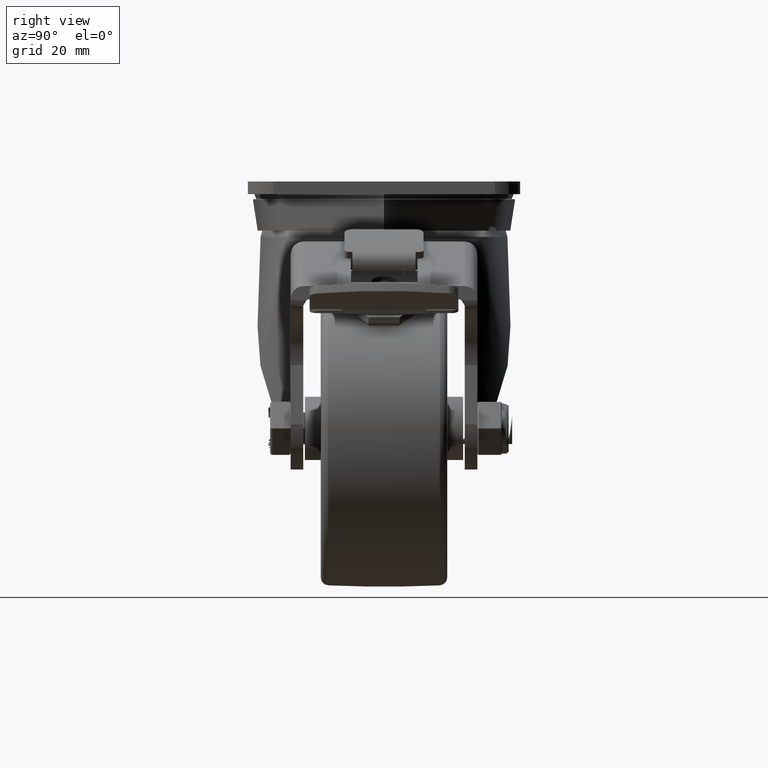
[diagram: clean part render]
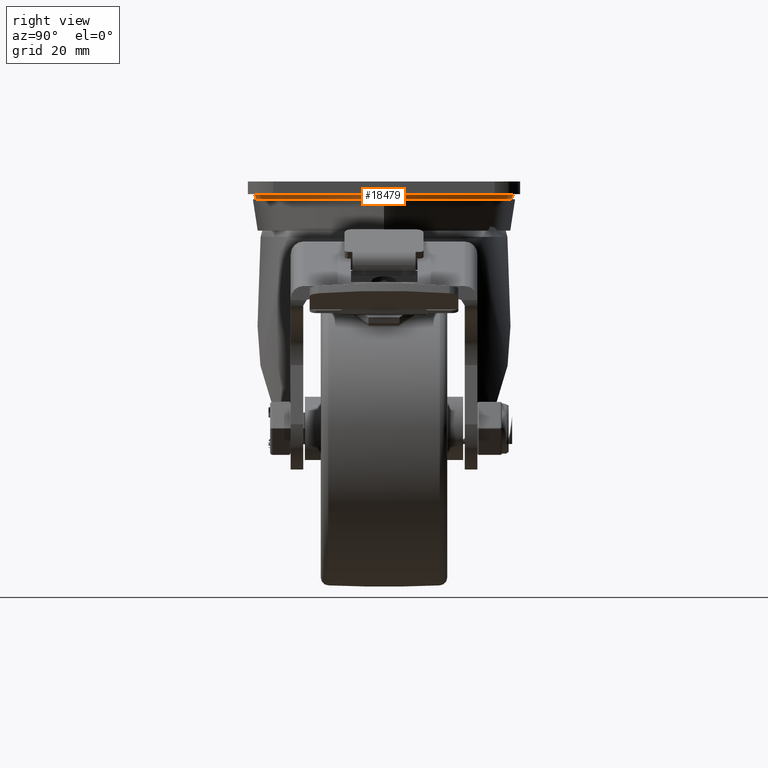
[diagram: same view with one face highlighted and labeled with its STEP entity id]
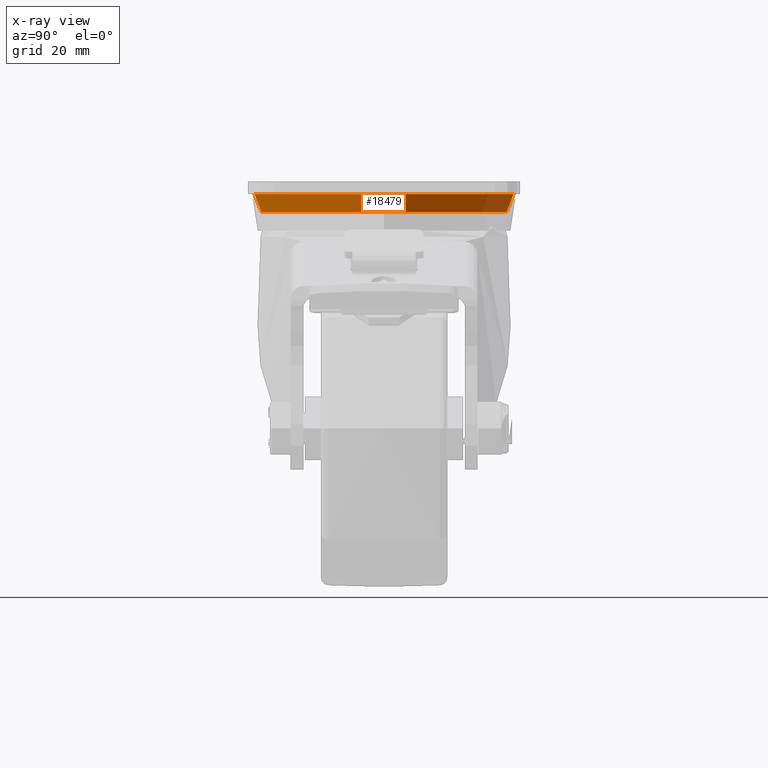
[diagram: x-ray of the same camera — body ghosted, the highlighted face saturated]
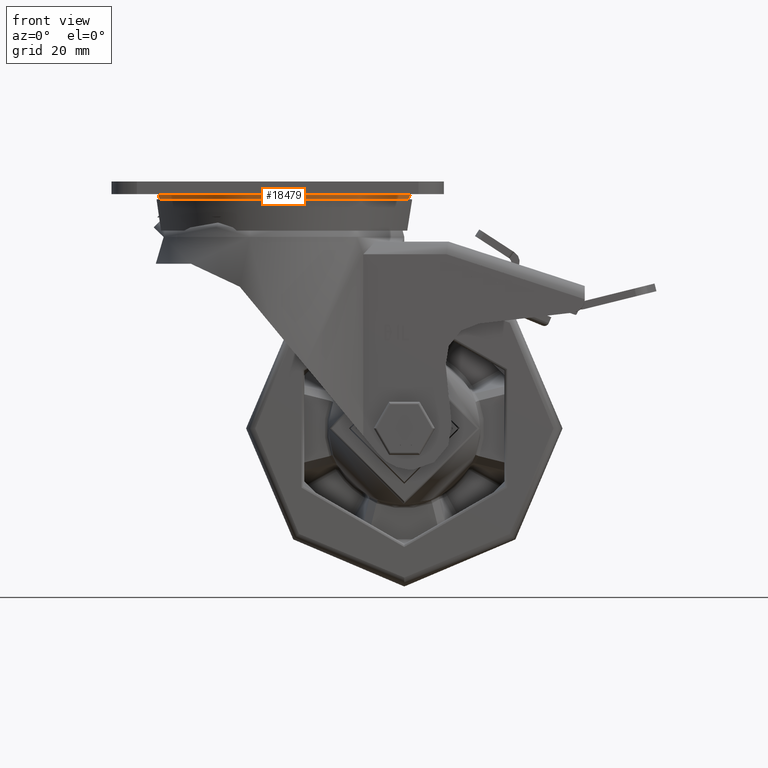
[diagram: same view with one face highlighted and labeled with its STEP entity id]
A machine part, right view. The second image highlights one B-rep face of the part: STEP entity #18479.
The next image is the same camera in x-ray: the body ghosted, the highlighted face saturated — about 0% of this face is hidden behind the body in this view.
A second angle (front view) of the same face is appended — the face is thin or edge-on in the first view.
In plain terms, the highlighted conical surface has half-angle 21.801 deg.
Its self-contained STEP definition (entity closure, byte-faithful):
#2045=CONICAL_SURFACE('',#19908,40.5,0.380506377112364);
#2130=FACE_OUTER_BOUND('',#3270,.T.);
#3270=EDGE_LOOP('',(#12654,#12655,#12656,#12657));
#4568=LINE('',#26627,#5857);
#5857=VECTOR('',#21790,40.5);
#7162=CIRCLE('',#19909,42.);
#7163=CIRCLE('',#19910,39.7543311883751);
#7987=VERTEX_POINT('',#26624);
#7988=VERTEX_POINT('',#26626);
#9810=EDGE_CURVE('',#7987,#7987,#7162,.T.);
#9811=EDGE_CURVE('',#7987,#7988,#4568,.T.);
#9812=EDGE_CURVE('',#7988,#7988,#7163,.T.);
#12654=ORIENTED_EDGE('',*,*,#9810,.F.);
#12655=ORIENTED_EDGE('',*,*,#9811,.T.);
#12656=ORIENTED_EDGE('',*,*,#9812,.F.);
#12657=ORIENTED_EDGE('',*,*,#9811,.F.);
#18479=ADVANCED_FACE('',(#2130),#2045,.T.);
#19908=AXIS2_PLACEMENT_3D('',#26623,#21786,#21787);
#19909=AXIS2_PLACEMENT_3D('',#26625,#21788,#21789);
#19910=AXIS2_PLACEMENT_3D('',#26628,#21791,#21792);
#21786=DIRECTION('center_axis',(0.,0.,1.));
#21787=DIRECTION('ref_axis',(-1.,0.,0.));
#21788=DIRECTION('center_axis',(0.,0.,1.));
#21789=DIRECTION('ref_axis',(-1.,0.,0.));
#21790=DIRECTION('',(-0.371390676354103,-4.54822403030223E-17,-0.92847669088526));
#21791=DIRECTION('center_axis',(-2.18180437718453E-16,2.47224639879891E-32,
-1.));
#21792=DIRECTION('ref_axis',(-1.,6.12323399573676E-17,2.18180437718453E-16));
#26623=CARTESIAN_POINT('Origin',(0.,0.,-7.75));
#26624=CARTESIAN_POINT('',(42.,5.14351655641888E-15,-4.));
#26625=CARTESIAN_POINT('Origin',(0.,0.,-4.));
#26626=CARTESIAN_POINT('',(39.7543311883751,-9.73700288841746E-15,-9.61417202906232));
#26627=CARTESIAN_POINT('',(40.5,4.95981953654678E-15,-7.75));
#26628=CARTESIAN_POINT('Origin',(-6.93889390390723E-15,-2.43425072210437E-15,
-9.61417202906232));